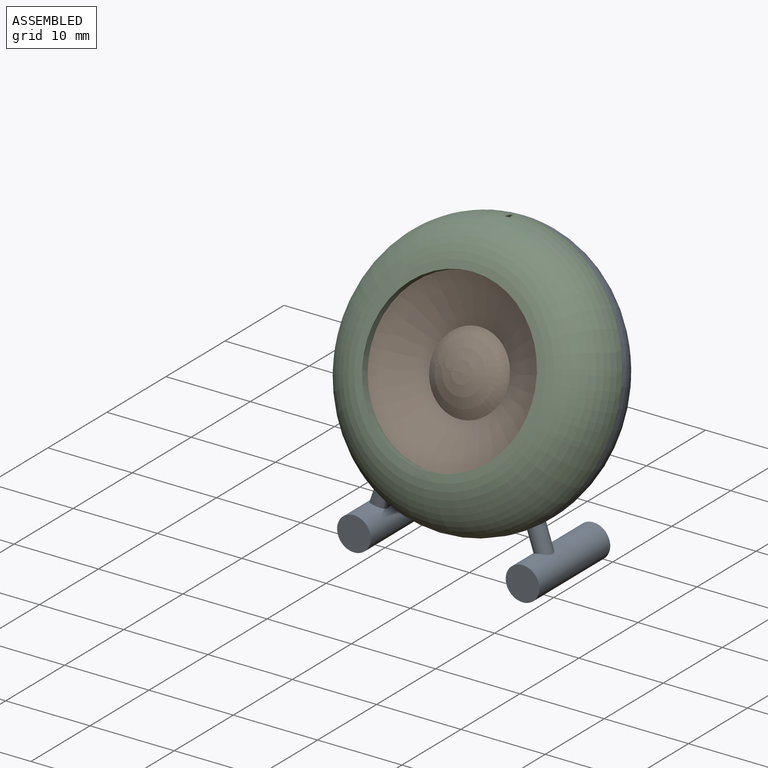
[diagram: assembled view]
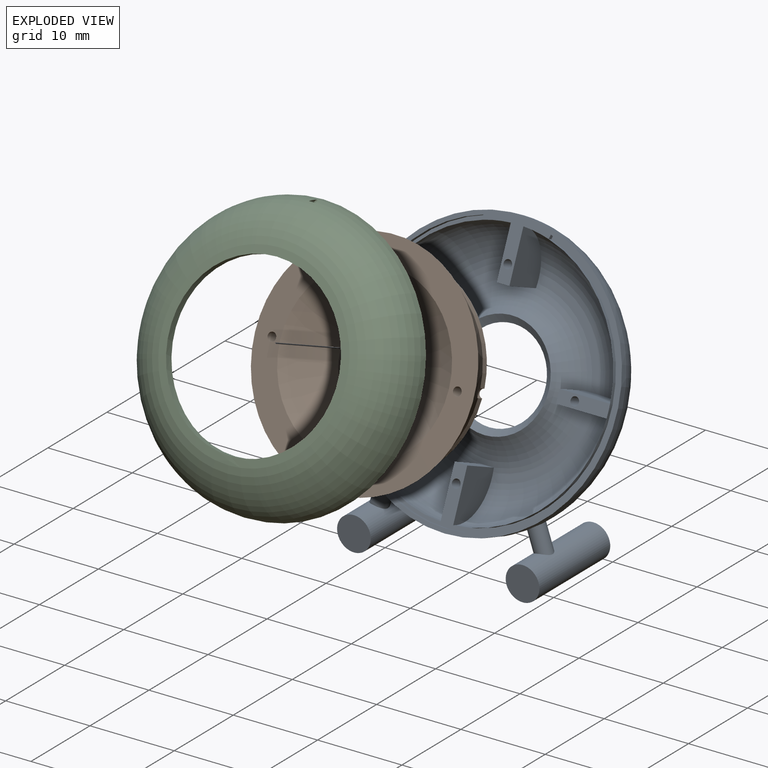
[diagram: exploded view]
GUIDED TOUR — MATED ASSEMBLY (Onshape document a1e74b7f12e187eb720c8940, AutoMate assembly a1e74b7f12e187eb720c8940_cfe190b56e59464f01ac70cf_ed221599cb6046afd8fdc7d7_default)

This assembly has 3 components, labeled P0..P2 below (a component is one placed occurrence of a part; the same part can appear more than once), held together by 2 mates. A mate is a constraint between two components; its type names the relative motion it leaves free:
  FASTENED — locks the two components together rigidly (no relative motion).
Axis/direction vectors are unit vectors and 'through' points are millimeter coordinates, both in the assembly's world frame.

MATES
  1. FASTENED "緊固 1": P0 <-> P1, direction (0.000, -0.918, 0.397) through (10.10, -26.57, 30.44) mm
  2. FASTENED "緊固 2": P2 <-> P0, direction (0.000, 0.918, -0.397) through (-4.91, -20.63, 44.18) mm

ASSEMBLY ORDER
  1. P0 — the base component [order heuristic]
  2. P1 [order heuristic]
  3. P2 [order heuristic]
Order-tag legend:
  [order heuristic] — this assembly is geometrically interlocked (no collision-free removal order exists), so components are listed in mate-graph order; insertion feasibility is not verified.

Of the 3 components, 1 carries the full construction recipe — the FeatureScript program that regenerates the part's solid from scratch; the rest are supplied as boundary geometry only.
Each toured component is shown spotlighted twice — in the assembled view, then in the exploded view, where a leader line traces a displaced component back to its assembled socket (saturated green if recipe-attached, orange if geometry-only; every other component desaturated gray) — followed by its recipe or geometry summary and the mates that hold it.
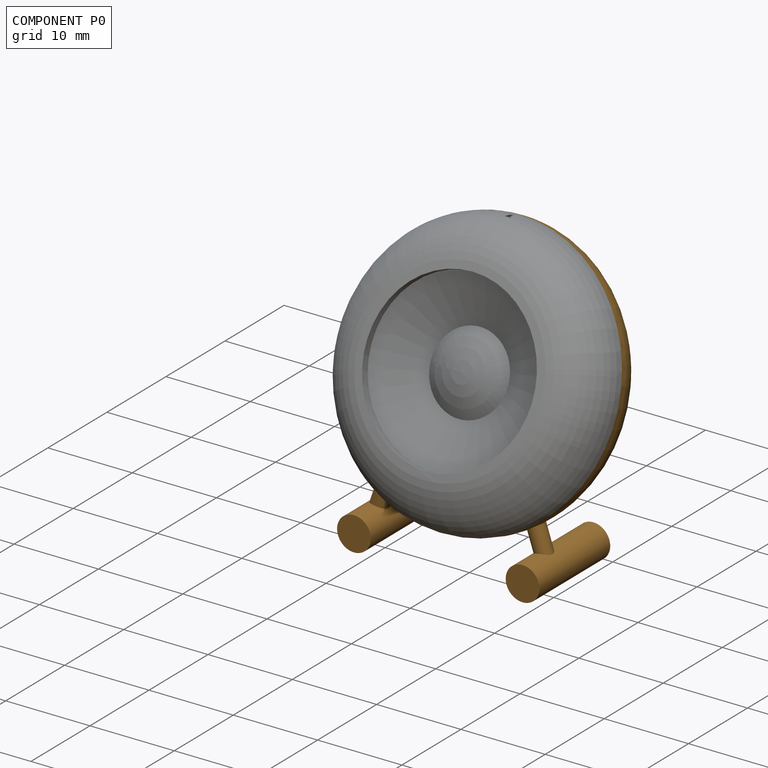
[diagram: component P0 — assembled]
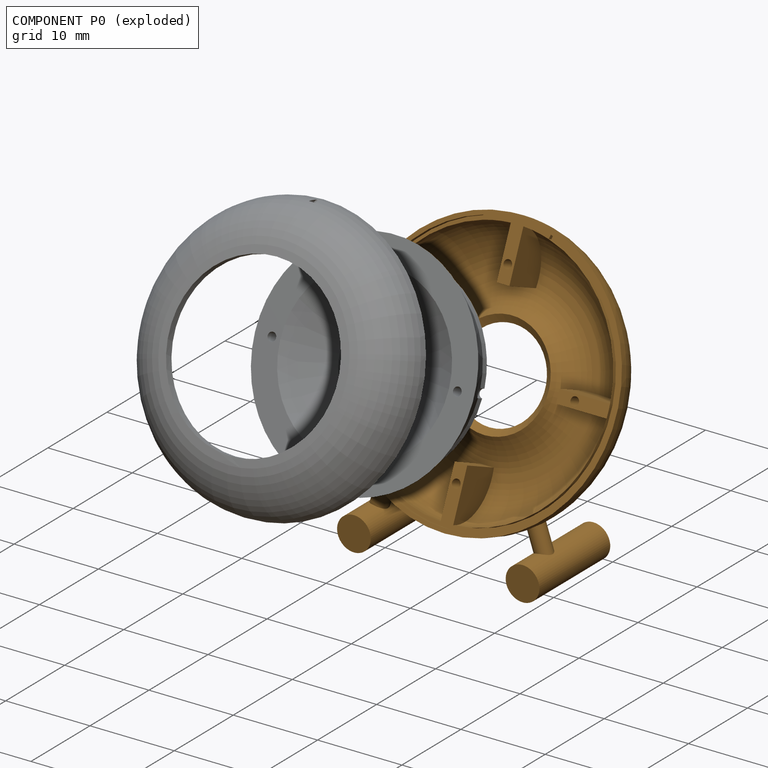
[diagram: component P0 — exploded]
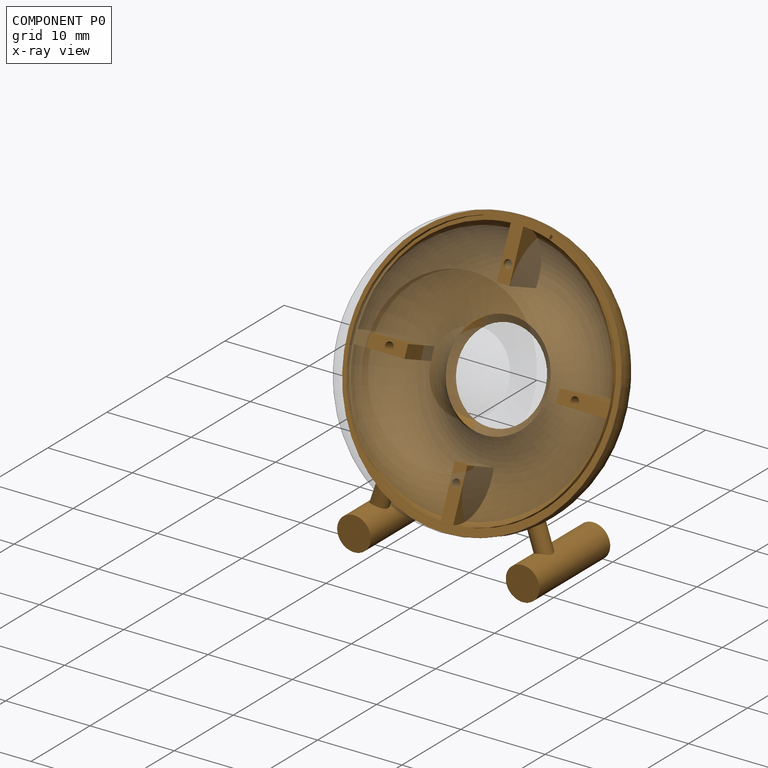
[diagram: component P0 — x-ray view]
COMPONENT P0 — geometry summary (no construction recipe available for this part):
  bounding box: 35.1 x 34.9 x 20.3 mm
  B-rep topology: 1 solid, 40 faces, 172 edges
  volume: 1424 mm^3 (6% of its bounding box)
  symmetry: mirror-symmetric across its x mid-plane
Held by: FASTENED mate "緊固 1" to P1; FASTENED mate "緊固 2" to P2.
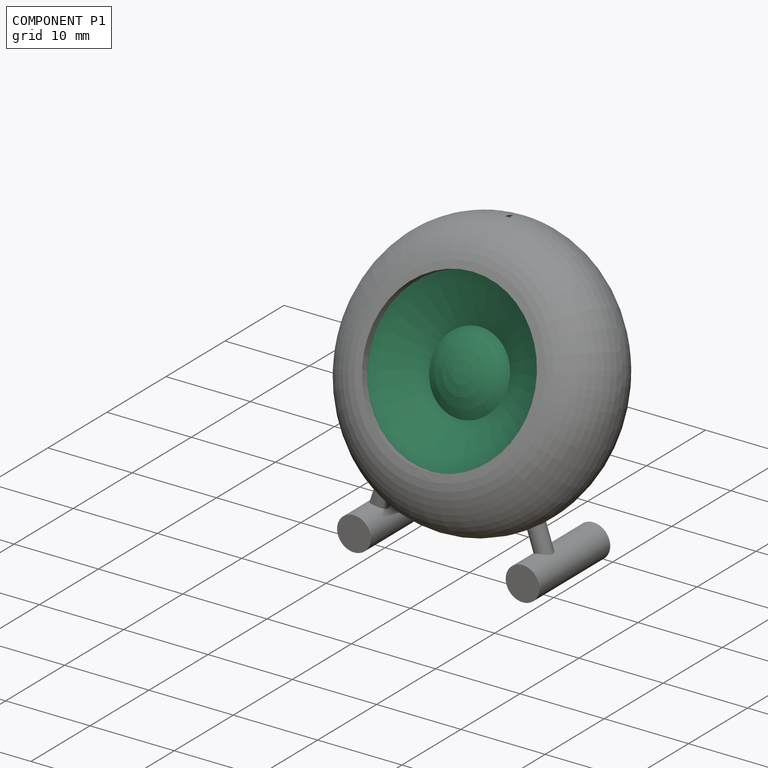
[diagram: component P1 — assembled]
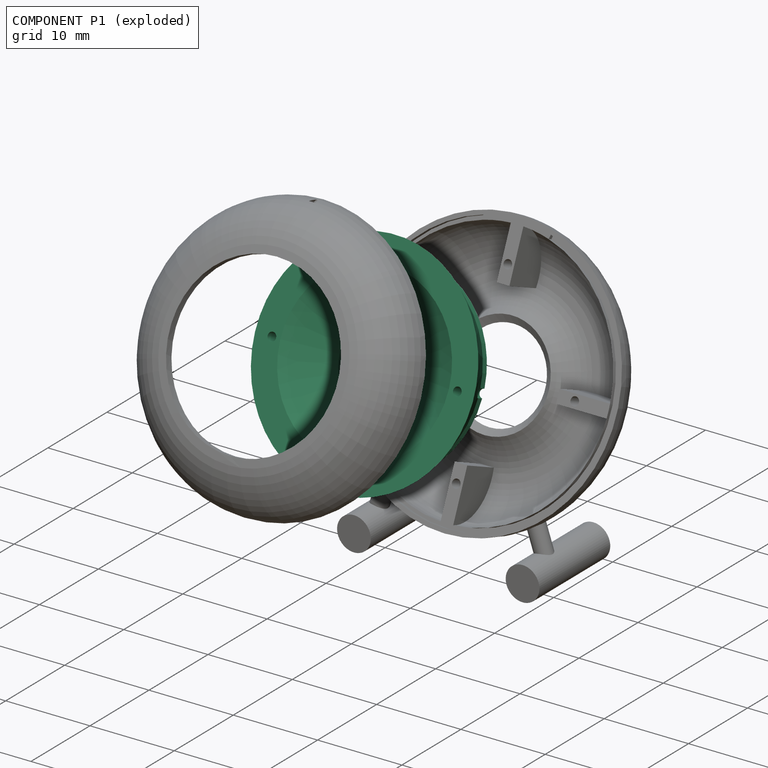
[diagram: component P1 — exploded]
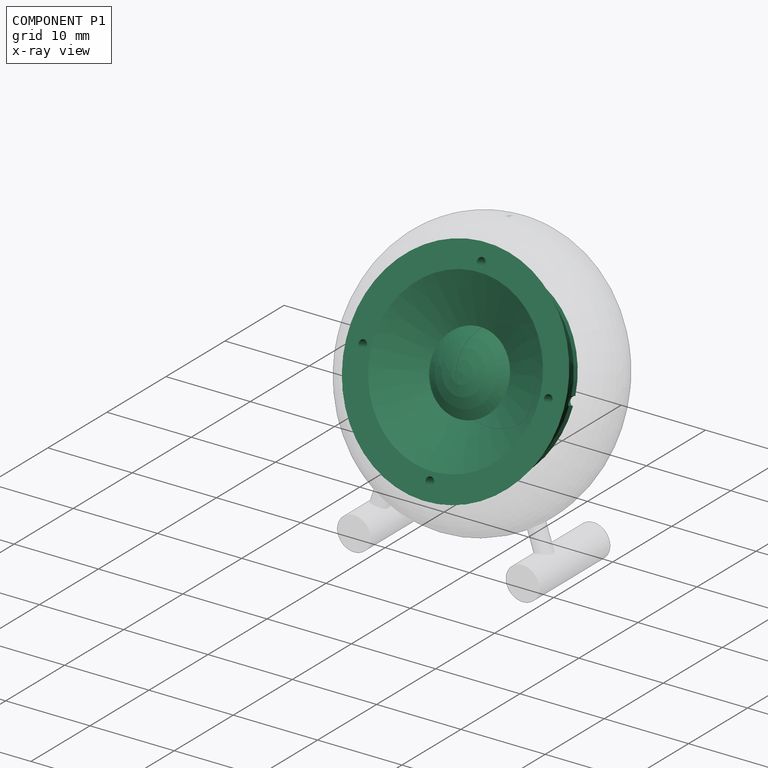
[diagram: component P1 — x-ray view]
COMPONENT P1 — recipe-attached (CADFS 00410366, mesh-verified: the recipe's output STEP matches this component's geometry to below the mesh-comparison resolution (tessellation chordal tolerance ~0.0568 mm)).
Held by: FASTENED mate "緊固 1" to P0.
Construction recipe (FeatureScript — the CAD program that rebuilds this solid; sketch coordinates are in the units given by the * unit suffixes, e.g. mm):

FeatureScript 1511;
import(path : "onshape/std/geometry.fs", version : "1511.0");
import(path : "onshape/std/common.fs", version : "1511.0");
const mm = millimeter;
const VERTEX = EntityType.VERTEX;
const EDGE = EntityType.EDGE;
const FACE = EntityType.FACE;
const BODY = EntityType.BODY;
function v(x, y){return vector(x, y);}
function OD(order){return orderDisambiguation(order);}
function OSD(set){return originalSetDisambiguation(set);}
function TD(topology){return topologyDisambiguation(topology);}
function TDD(query){return trueDependencyDisambiguation(query);}
function sQuery(a, b, c) {return sketchEntityQuery(a, b, c);}

annotation { "Feature Type Name" : "Feature", "Feature Type Description" : "" }
export const myFeature = defineFeature(function(context is Context, id is Id, definition is map)
    precondition{}
    {
        {
            var Q0;
            Q0=qCreatedBy(makeId("Front.planeOp"),FACE);
            var sketch = newSketch(context, id + "F0", { "sketchPlane" : qUnion([Q0])});
            skLineSegment(sketch, "E0", {"start": v(0, 0) * mm, "end": v(6, 0) * mm});
            skLineSegment(sketch, "E1", {"start": v(6.75, 2) * mm, "end": v(6, 2) * mm});
            skLineSegment(sketch, "E2", {"start": v(6, 2) * mm, "end": v(6, 0) * mm});
            skLineSegment(sketch, "E3", {"start": v(10, 9) * mm, "end": v(4.63, 6.4) * mm});
            skArc(sketch, "E4", {"start": v(4.63, 6.4) * mm, "mid": v(2.43, 7.52) * mm, "end": v(0, 7.9) * mm});
            skLineSegment(sketch, "E5", {"start": v(0, 0) * mm, "end": v(0, 7.9) * mm});
            skLineSegment(sketch, "E6", {"start": v(10.95, 4.87) * mm, "end": v(10.95, 4.11) * mm});
            skLineSegment(sketch, "E7", {"start": v(10.95, 4.11) * mm, "end": v(8.01, 4.11) * mm});
            skLineSegment(sketch, "E8", {"start": v(8.01, 4.11) * mm, "end": v(8.01, 3.16) * mm});
            skLineSegment(sketch, "E9", {"start": v(8.01, 3.16) * mm, "end": v(6.75, 3.16) * mm});
            skLineSegment(sketch, "E10", {"start": v(6.75, 3.16) * mm, "end": v(6.75, 2) * mm});
            skLineSegment(sketch, "E11", {"start": v(13, 9) * mm, "end": v(10, 9) * mm});
            skLineSegment(sketch, "E12", {"start": v(13, 9) * mm, "end": v(10.95, 4.87) * mm});
            skSolve(sketch);
        }
        {
            var Q0;
            Q0=makeQuery(id+"F0.imprint","IMPRINT",FACE,{"disambiguationData":[TD([[makeQuery(id+"F0.imprint","IMPRINT",EDGE,{"derivedFrom":sQuery(id+"F0.wireOp",EDGE,"E0")}),1.0]])]});
            var Q1;
            Q1=sQuery(id+"F0.wireOp",EDGE,"E5");
            revolve(context, id + "F1", {"entities" : qUnion([Q0]), "axis" : qUnion([Q1]), "revolveType" : RevolveType.FULL});
        }
        {
            var Q0;
            Q0=makeQuery(id+"F1.opRevolve","SWEPT_FACE",FACE,{"disambiguationData":[OSD([sQuery(id+"F0.wireOp",EDGE,"E11")])]});
            var sketch = newSketch(context, id + "F2", { "sketchPlane" : qUnion([Q0])});
            skCircle(sketch, "E13", {"center": v(0, 11) * mm, "radius": 0.5 * mm});
            skCircle(sketch, "E14.1.0", {"center": v(-11, 0) * mm, "radius": 0.5 * mm});
            skCircle(sketch, "E14.2.0", {"center": v(0, -11) * mm, "radius": 0.5 * mm});
            skCircle(sketch, "E14.3.0", {"center": v(11, 0) * mm, "radius": 0.5 * mm});
            skPoint(sketch, "E14.center", {"position": v(0, 0) * mm});
            skCircle(sketch, "E15", {"center": v(0, 0) * mm, "radius": 11 * mm, "construction": true});
            skSolve(sketch);
        }
        {
            var Q0;
            Q0 = qSketchRegion(id + "F2", true);
            var Q1;
            Q1 = qConstructionFilter(qBodyType(qCreatedBy(id + "F2" ,EDGE), BodyType.WIRE), ConstructionObject.NO);
            extrude(context, id + "F3", {"entities" : qUnion([Q0]), "operationType" : NewBodyOperationType.REMOVE, "surfaceEntities" : qUnion([Q1]), "endBound" : BoundingType.THROUGH_ALL, "oppositeDirection" : true, "depth" : 25 * mm});
        }
    });
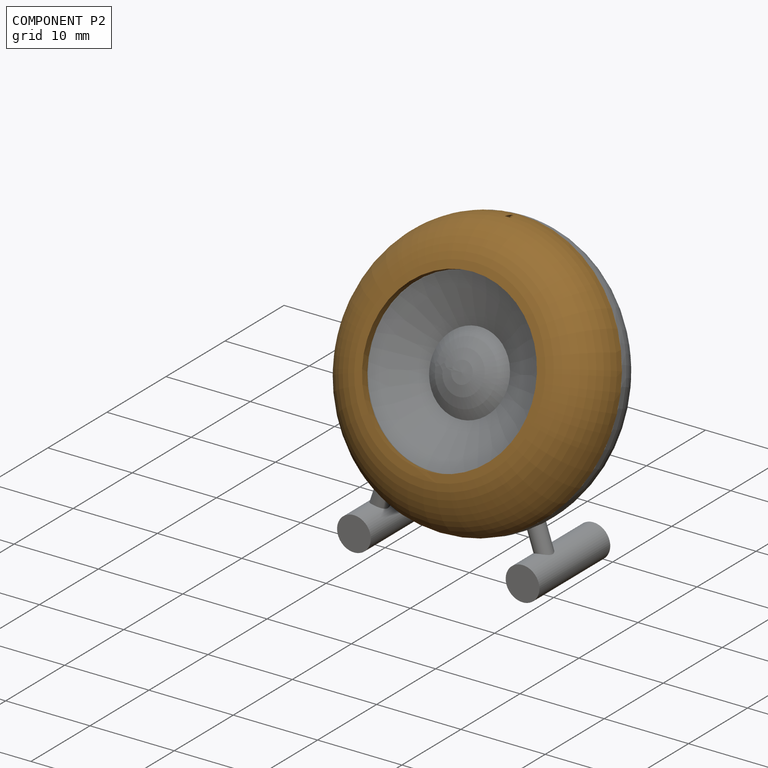
[diagram: component P2 — assembled]
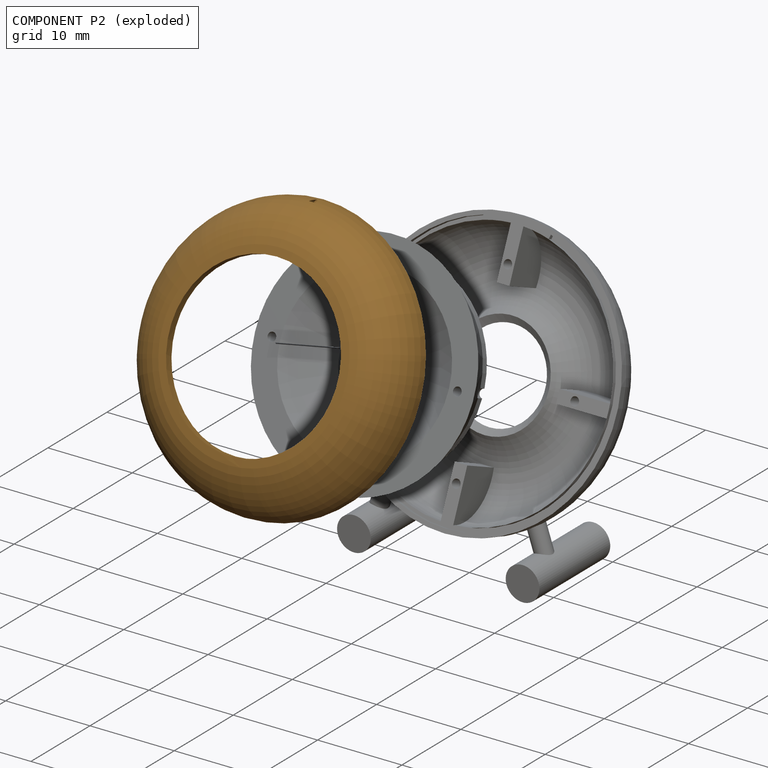
[diagram: component P2 — exploded]
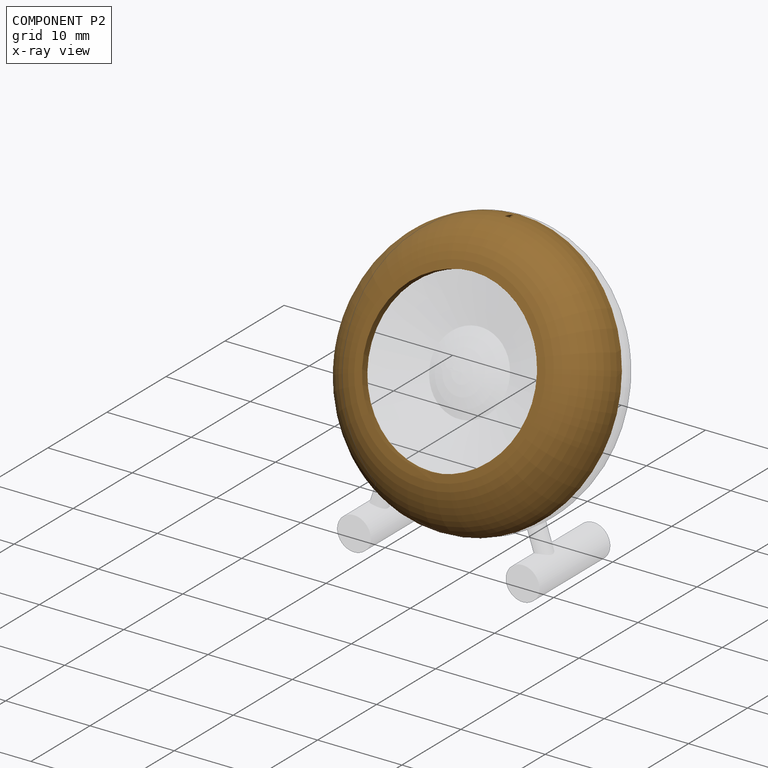
[diagram: component P2 — x-ray view]
COMPONENT P2 — geometry summary (no construction recipe available for this part):
  bounding box: 34.6 x 31.8 x 16.9 mm
  B-rep topology: 1 solid, 13 faces, 64 edges
  volume: 755 mm^3 (4% of its bounding box)
  symmetry: mirror-symmetric across its x mid-plane
Held by: FASTENED mate "緊固 2" to P0.
PROVENANCE & LICENSES
Assembly (occurrences, transforms, mates, per-part STEP geometry): AutoMate dataset, Zenodo record 7776208, CC0.
Construction recipes: CADFS (HuggingFace VladPyatov/CADFS, CC-BY-4.0, layered over the ABC dataset), FeatureScript reconstruction programs keyed by ABC model id.
Join: ABC meta listings map ABC model id -> Onshape documentId; within a shared document, parts are matched by geometric signature (bounding-box dims + volume at 0.1% relative tolerance, exact B-rep face/solid counts).
Verification: 1 of this assembly's 3 components carries a recipe attachment, and every attachment is mesh-verified: the CADFS STEP and the AutoMate member STEP were compared as meshes in their shared local frame (symmetric sampled-point-to-mesh distance); worst across the 1 attachment: below the mesh-comparison resolution (tessellation chordal tolerance ~0.0568 mm) on a 38 mm part.
Renders: orthographic iso camera (az 35 / el 25); the floor grid conveys scale (grid pitch printed in each image; no ruler). In the exploded view each component is displaced by its stored offset vector: the offsets alone carry the explosion direction (mate normal/axis signs are not orientation cues and do not encode it), and separation distances are assigned per mate-chain, not proportionally to assembly-order depth.
